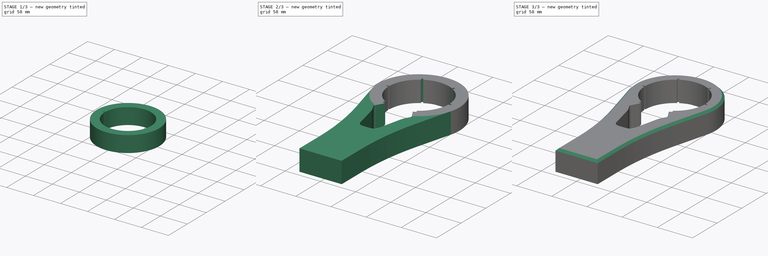
[diagram: build sequence overview — one tinted view per stage of 3, left to right]
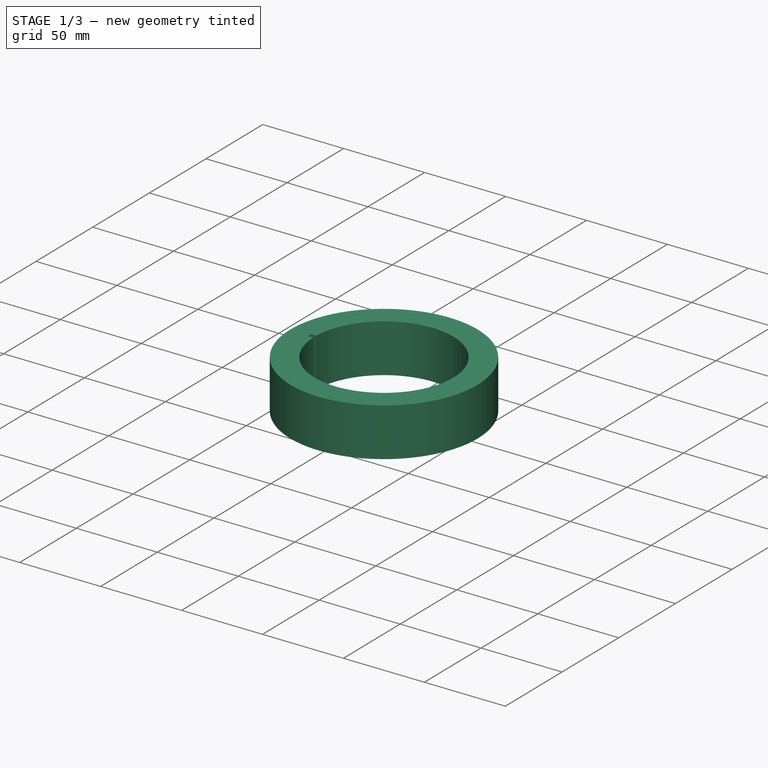
[diagram: stage 1 of 3 — iso view after this stage's code; geometry added in this stage tinted green]
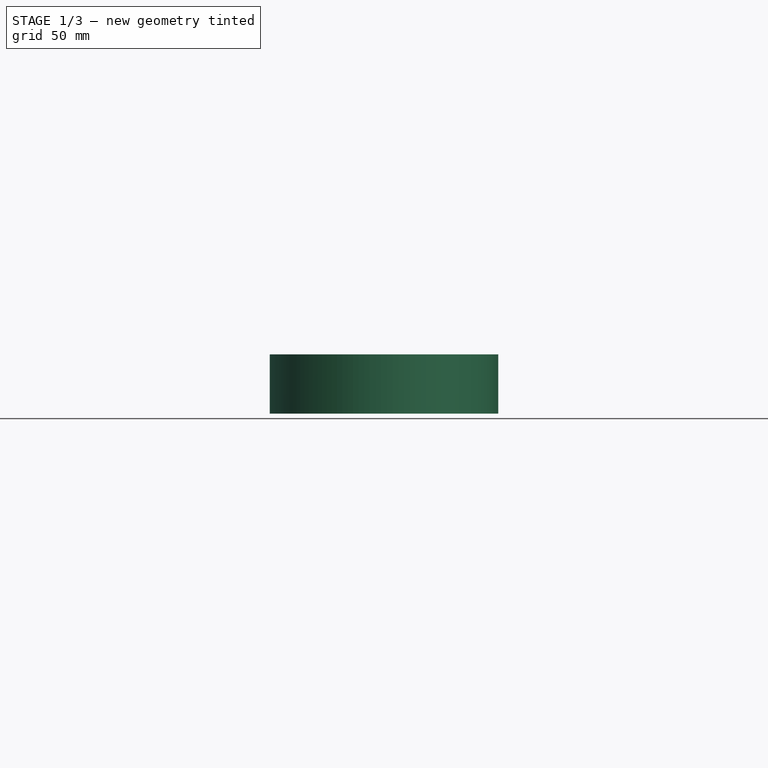
[diagram: stage 1 of 3 — front view after this stage's code; geometry added in this stage tinted green]
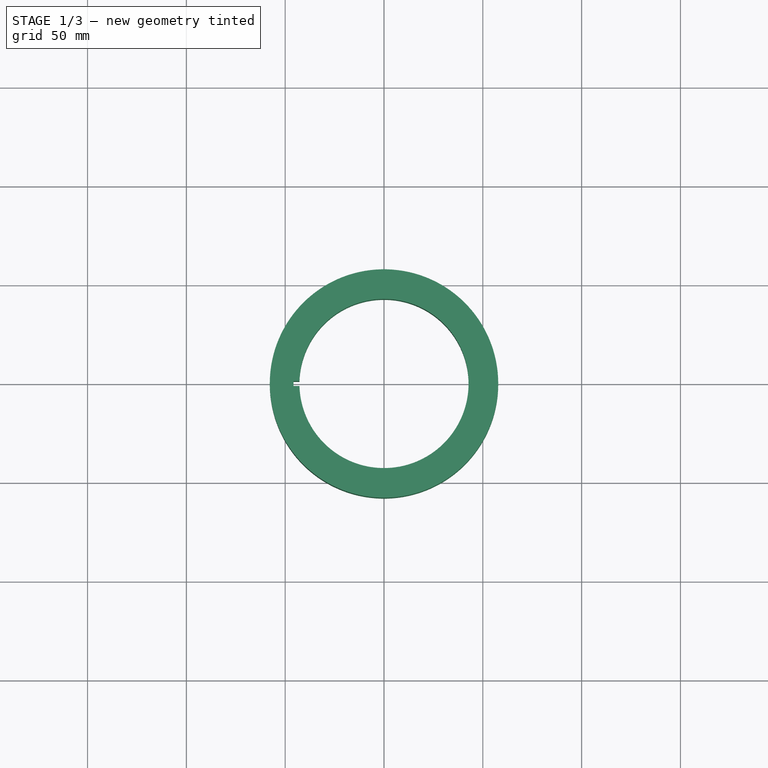
[diagram: stage 1 of 3 — top view after this stage's code; geometry added in this stage tinted green]
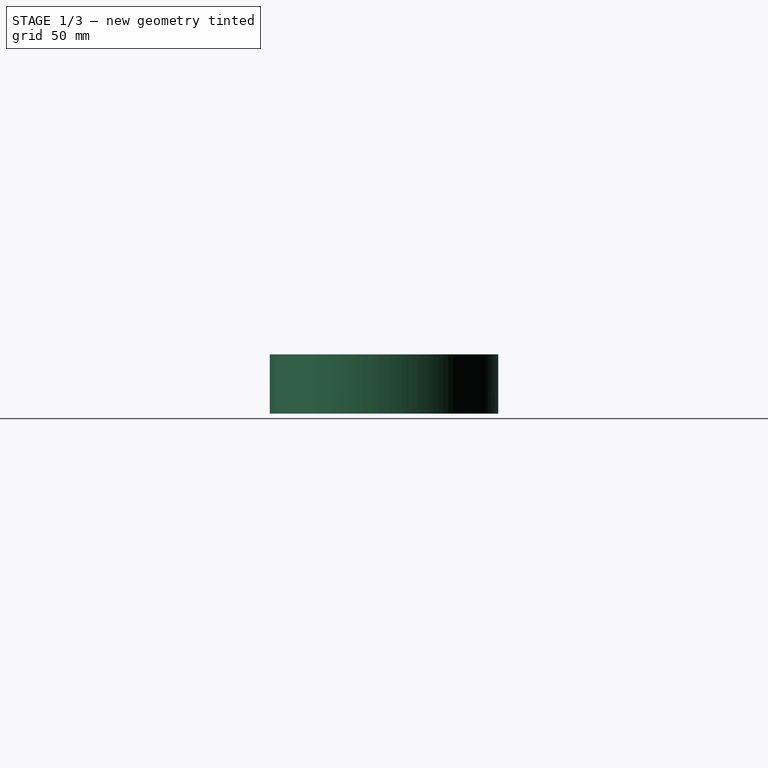
[diagram: stage 1 of 3 — right view after this stage's code; geometry added in this stage tinted green]
FCSTD DOCUMENT  (FreeCAD 0.21R33771 (Git))
Label: Ключ под фильтр
License: All rights reserved
LicenseURL: https://en.wikipedia.org/wiki/All_rights_reserved
objects: Sketcher::SketchObject×4, PartDesign::Pad×2, PartDesign::Pocket×2, PartDesign::PolarPattern×1, PartDesign::Chamfer×1, PartDesign::Fillet×1, PartDesign::Body×1
note: 18 computed .brp shape members not serialized (recipe doc carries the construction recipe); baked Part::Feature solids carry a one-line shape summary decoded from their .brp

FEATURE [Sketcher::SketchObject] Sketch001
  FullyConstrained = true
  MapMode = 5
  Support = -> [XY_Plane]
  sketch-geometry (4):
    g0: Circle CenterX=0 CenterY=0 CenterZ=0 NormalX=0 NormalY=0 NormalZ=1 AngleXU=0 Radius=42.8
    g1: Circle CenterX=0 CenterY=0 CenterZ=0 NormalX=0 NormalY=0 NormalZ=1 AngleXU=0 Radius=57.8
    g2: GeomPoint X=-42.8 Y=0 Z=0
    g3: GeomPoint X=-57.8 Y=0 Z=0
  constraints (8):
    c: Coincident(g0,g-1)
    c: Coincident(g1,g0)
    c: PointOnObject(g2,g0)
    c: PointOnObject(g3,g1)
    c: PointOnObject(g3,g-1)
    c: PointOnObject(g2,g-1)
    c: DistanceX(g3,g2) = 15
    c: Diameter(g0) = 85.6
FEATURE [PartDesign::Pad] Pad
  Direction = (0,0,1)
  Length = 30
  Length2 = 10
  Profile = -> Sketch001
  ReferenceAxis = -> Sketch001 [N_Axis]
  Type = 0
FEATURE [Sketcher::SketchObject] Sketch
  ExternalGeometry = -> [Pad]
  FullyConstrained = true
  MapMode = 5
  Support = -> [XY_Plane]
  sketch-geometry (4):
    g0: LineSegment StartX=-42.7817 StartY=1.25 StartZ=0 EndX=-45.7817 EndY=1.25 EndZ=0
    g1: LineSegment StartX=-45.7817 StartY=1.25 StartZ=0 EndX=-45.7817 EndY=-1.25 EndZ=0
    g2: LineSegment StartX=-45.7817 StartY=-1.25 StartZ=0 EndX=-42.7817 EndY=-1.25 EndZ=0
    g3: ArcOfCircle CenterX=0 CenterY=0 CenterZ=0 NormalX=0 NormalY=0 NormalZ=1 AngleXU=0 Radius=42.8 StartAngle=3.11238 EndAngle=3.1708
  constraints (12):
    c: Coincident(g0,g1)
    c: Vertical(g1)
    c: Coincident(g1,g2)
    c: Horizontal(g2)
    c: Horizontal(g0)
    c: Vertical(g0,g2)
    c: DistanceX(g0,g0) = 3
    c: DistanceY(g1,g1) = 2.5
    c: Coincident(g3,g-4)
    c: PointOnObject(g3,g-3)
    c: Coincident(g2,g3)
    c: Coincident(g0,g3)
FEATURE [PartDesign::Pocket] Pocket
  BaseFeature = -> Pad
  Direction = (0,0,-1)
  Length = 5
  Length2 = 5
  Profile = -> Sketch
  ReferenceAxis = -> Sketch [N_Axis]
  Reversed = true
  Type = 1
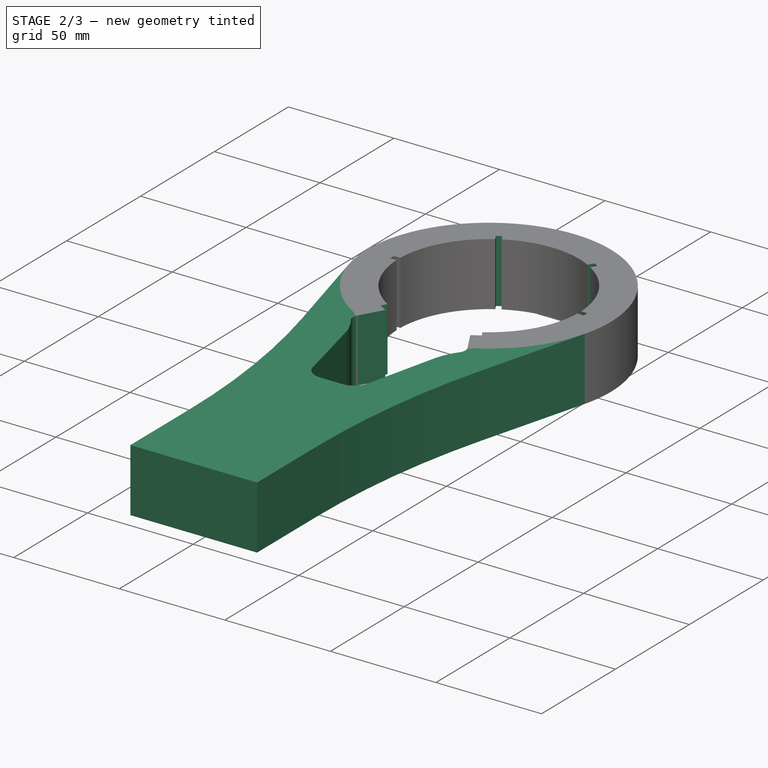
[diagram: stage 2 of 3 — iso view after this stage's code; geometry added in this stage tinted green]
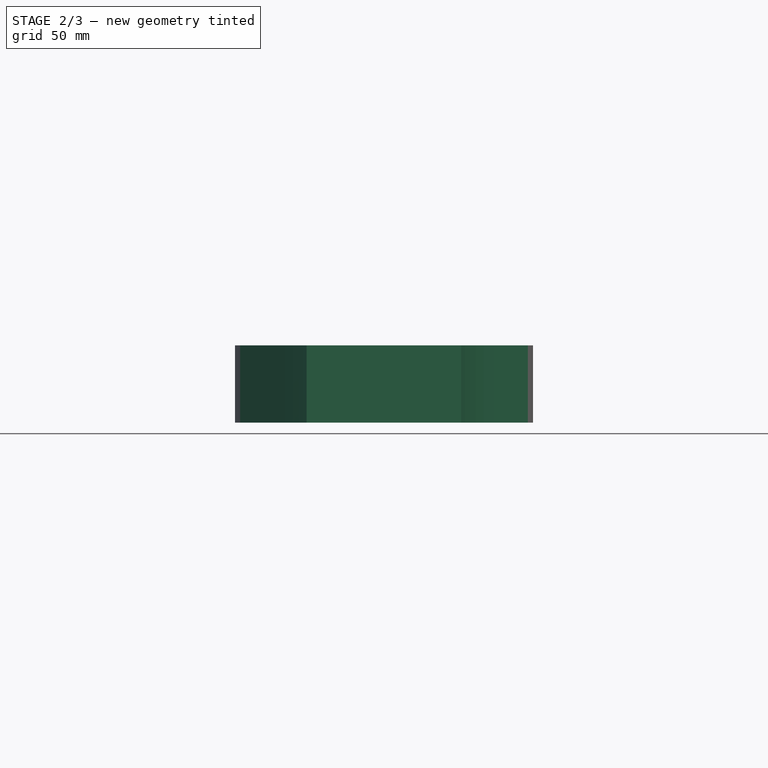
[diagram: stage 2 of 3 — front view after this stage's code; geometry added in this stage tinted green]
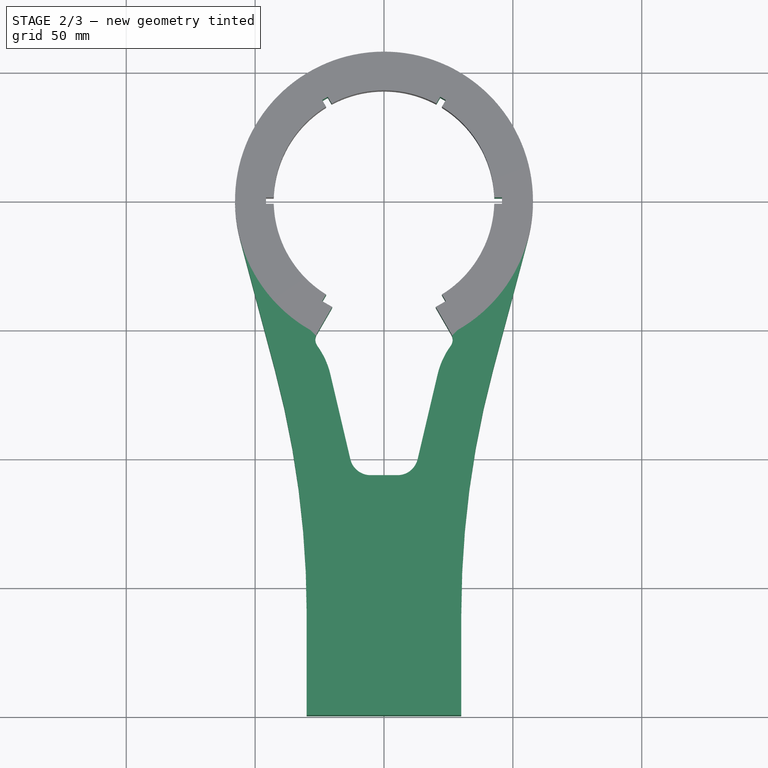
[diagram: stage 2 of 3 — top view after this stage's code; geometry added in this stage tinted green]
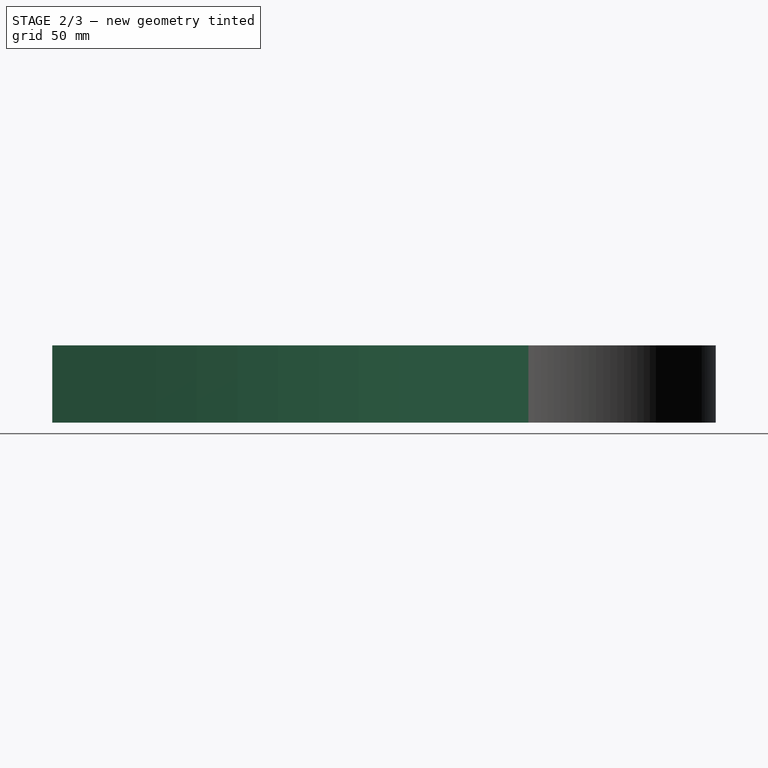
[diagram: stage 2 of 3 — right view after this stage's code; geometry added in this stage tinted green]
FEATURE [PartDesign::PolarPattern] PolarPattern
  Angle = 360
  Axis = -> Z_Axis
  BaseFeature = -> Pocket
  Occurrences = 6
  Originals = -> [Pocket]
FEATURE [Sketcher::SketchObject] Sketch002
  ExternalGeometry = -> [PolarPattern]
  FullyConstrained = true
  MapMode = 5
  Support = -> [XY_Plane]
  sketch-geometry (8):
    g0: LineSegment StartX=-21.8083 StartY=-40.2732 StartZ=0 EndX=-20.0763 EndY=-41.2732 EndZ=0
    g1: LineSegment StartX=-20.0763 StartY=-41.2732 StartZ=0 EndX=-26.0397 EndY=-51.6021 EndZ=0
    g2: LineSegment StartX=-21.8083 StartY=-40.2732 StartZ=0 EndX=-20.3083 EndY=-37.6751 EndZ=0
    g3: LineSegment StartX=21.8083 StartY=-40.2732 StartZ=0 EndX=20.0763 EndY=-41.2732 EndZ=0
    g4: LineSegment StartX=20.0763 StartY=-41.2732 StartZ=0 EndX=26.0397 EndY=-51.6021 EndZ=0
    g5: ArcOfCircle CenterX=0 CenterY=0 CenterZ=0 NormalX=0 NormalY=0 NormalZ=1 AngleXU=0 Radius=42.8 StartAngle=4.218 EndAngle=5.20678
    g6: ArcOfCircle CenterX=0 CenterY=0 CenterZ=0 NormalX=0 NormalY=0 NormalZ=1 AngleXU=0 Radius=57.8 StartAngle=4.24505 EndAngle=5.17973
    g7: LineSegment StartX=21.8083 StartY=-40.2732 StartZ=0 EndX=20.3083 EndY=-37.6751 EndZ=0
  constraints (21):
    c: Coincident(g-5,g0)
    c: Coincident(g0,g1)
    c: PointOnObject(g1,g-8)
    c: Coincident(g0,g2)
    c: Coincident(g2,g-7)
    c: Coincident(g-6,g3)
    c: Coincident(g3,g4)
    c: Coincident(g5,g-8)
    c: Coincident(g6,g5)
    c: Coincident(g6,g1)
    c: Coincident(g4,g6)
    c: Perpendicular(g1,g0)
    c: Coincident(g5,g2)
    c: Distance(g0) = 2
    c: Perpendicular(g4,g3)
    c: Coincident(g7,g3)
    c: Coincident(g7,g5)
    c: Parallel(g7,g-6)
    c: Equal(g3,g0)
    c: Perpendicular(g2,g0)
    c: Perpendicular(g7,g3)
FEATURE [Sketcher::SketchObject] Sketch003
  ExternalGeometry = -> [PolarPattern,Sketch002]
  FullyConstrained = false
  MapMode = 5
  Support = -> [XY_Plane]
  sketch-geometry (25):
    g0: LineSegment StartX=-55.841 StartY=-14.9207 StartZ=0 EndX=-42.3931 EndY=-65.2496 EndZ=0
    g1: LineSegment StartX=55.841 StartY=-14.9207 StartZ=0 EndX=42.3931 EndY=-65.2496 EndZ=0
    g2: GeomPoint X=-46.0397 Y=-51.6021 Z=0
    g3: LineSegment StartX=-30 StartY=-159.639 StartZ=0 EndX=-30 EndY=-199.639 EndZ=0
    g4: LineSegment StartX=30 StartY=-159.639 StartZ=0 EndX=30 EndY=-199.639 EndZ=0
    g5: LineSegment StartX=-30 StartY=-199.639 StartZ=0 EndX=30 EndY=-199.639 EndZ=0
    g6: ArcOfCircle CenterX=-395.648 CenterY=-159.639 CenterZ=0 NormalX=0 NormalY=0 NormalZ=1 AngleXU=0 Radius=365.648 StartAngle=0 EndAngle=0.2611
    g7: GeomPoint X=-30 Y=-111.631 Z=0
    g8: ArcOfCircle CenterX=395.648 CenterY=-159.639 CenterZ=0 NormalX=0 NormalY=0 NormalZ=1 AngleXU=0 Radius=365.648 StartAngle=2.88049 EndAngle=3.14159
    g9: GeomPoint X=30 Y=-111.631 Z=0
    g10: ArcOfCircle CenterX=-3.2e-15 CenterY=3.3e-15 CenterZ=0 NormalX=0 NormalY=0 NormalZ=1 AngleXU=0 Radius=57.8 StartAngle=3.40269 EndAngle=4.24505
    g11: LineSegment StartX=-20.8018 StartY=-67.4411 StartZ=0 EndX=-13.0567 EndY=-100.344 EndZ=0
    g12: LineSegment StartX=-5.20039 StartY=-106.566 StartZ=0 EndX=5.20039 EndY=-106.566 EndZ=0
    g13: LineSegment StartX=13.0567 StartY=-100.344 StartZ=0 EndX=20.8018 EndY=-67.4411 EndZ=0
    g14: ArcOfCircle CenterX=-5.20039 CenterY=-98.4952 CenterZ=0 NormalX=0 NormalY=0 NormalZ=1 AngleXU=0 Radius=8.07103 StartAngle=3.37277 EndAngle=4.71239
    g15: GeomPoint X=-11.5922 Y=-106.566 Z=0
    g16: ArcOfCircle CenterX=5.20039 CenterY=-98.4952 CenterZ=0 NormalX=0 NormalY=0 NormalZ=1 AngleXU=0 Radius=8.07103 StartAngle=4.71239 EndAngle=6.052
    g17: GeomPoint X=11.5922 Y=-106.566 Z=0
    g18: ArcOfCircle CenterX=-50.8368 CenterY=-74.511 CenterZ=0 NormalX=0 NormalY=0 NormalZ=1 AngleXU=0 Radius=30.8559 StartAngle=0.231181 EndAngle=0.623932
    g19: ArcOfCircle CenterX=-3.2e-15 CenterY=3.3e-15 CenterZ=0 NormalX=0 NormalY=0 NormalZ=1 AngleXU=0 Radius=57.8 StartAngle=5.17973 EndAngle=6.02209
    g20: ArcOfCircle CenterX=50.8368 CenterY=-74.511 CenterZ=0 NormalX=0 NormalY=0 NormalZ=1 AngleXU=0 Radius=30.8559 StartAngle=2.51766 EndAngle=2.91041
    g21: LineSegment StartX=26.0397 StartY=-51.6021 StartZ=0 EndX=20.0763 EndY=-41.2732 EndZ=0
    g22: ArcOfCircle CenterX=22.1402 CenterY=-53.8534 CenterZ=0 NormalX=0 NormalY=0 NormalZ=1 AngleXU=0 Radius=4.50271 StartAngle=5.65925 EndAngle=6.80678
    g23: LineSegment StartX=-26.0397 StartY=-51.6021 StartZ=0 EndX=-20.0763 EndY=-41.2732 EndZ=0
    g24: ArcOfCircle CenterX=-22.1402 CenterY=-53.8534 CenterZ=0 NormalX=0 NormalY=0 NormalZ=1 AngleXU=0 Radius=4.50271 StartAngle=2.61799 EndAngle=3.76552
  constraints (52):
    c: Horizontal(g7,g9)
    c: DistanceX(g7,g9) = 60
    c: Vertical(g4)
    c: Vertical(g3)
    c: Coincident(g5,g3)
    c: Coincident(g5,g4)
    c: Horizontal(g5)
    c: PointOnObject(g7,g3)
    c: PointOnObject(g7,g0)
    c: Tangent(g3,g6) = 1.5708
    c: Tangent(g0,g6) = 1.5708
    c: PointOnObject(g9,g4)
    c: PointOnObject(g9,g1)
    c: Tangent(g4,g8) = -1.5708
    c: Tangent(g1,g8) = -1.5708
    c: Equal(g8,g6)
    c: DistanceY(g3,g3) = 40
    c: PointOnObject(g2,g0)
    c: DistanceX(g2,g-4) = 20
    c: Equal(g10,g-3)
    c: PointOnObject(g0,g-3)
    c: Equal(g1,g0)
    c: Horizontal(g0,g1)
    c: Horizontal(g2,g-4)
    c: Tangent(g0,g10) = -1.5708
    c: Symmetric(g17,g15,g-2)
    c: PointOnObject(g15,g12)
    c: PointOnObject(g15,g11)
    c: Tangent(g12,g14) = -1.5708
    c: Tangent(g11,g14) = -1.5708
    c: PointOnObject(g17,g12)
    c: PointOnObject(g17,g13)
    c: Tangent(g12,g16) = -1.5708
    c: Tangent(g13,g16) = -1.5708
    c: Tangent(g11,g18) = 1.5708
    c: Coincident(g19,g10)
    c: Coincident(g19,g1)
    c: Tangent(g13,g20) = 1.5708
    c: Equal(g20,g18)
    c: Equal(g16,g14)
    c: Coincident(g19,g-5)
    c: Coincident(g10,g-4)
    c: Coincident(g21,g-5)
    c: Tangent(g20,g22) = 1.5708
    c: Tangent(g21,g22) = -1.5708
    c: Coincident(g22,g19)
    c: Coincident(g23,g-4)
    c: Tangent(g18,g24) = 1.5708
    c: Tangent(g23,g24) = 1.5708
    c: Equal(g24,g22)
    c: Coincident(g24,g10)
    c: Horizontal(g20,g18)
FEATURE [PartDesign::Pad] Pad001
  BaseFeature = -> PolarPattern
  Direction = (0,0,1)
  Length = 30
  Length2 = 10
  Profile = -> Sketch003
  ReferenceAxis = -> Sketch003 [N_Axis]
  Type = 0
FEATURE [PartDesign::Pocket] Pocket001
  BaseFeature = -> Pad001
  Direction = (0,0,-1)
  Length = 5
  Length2 = 5
  Profile = -> Sketch002
  ReferenceAxis = -> Sketch002 [N_Axis]
  Reversed = true
  Type = 1
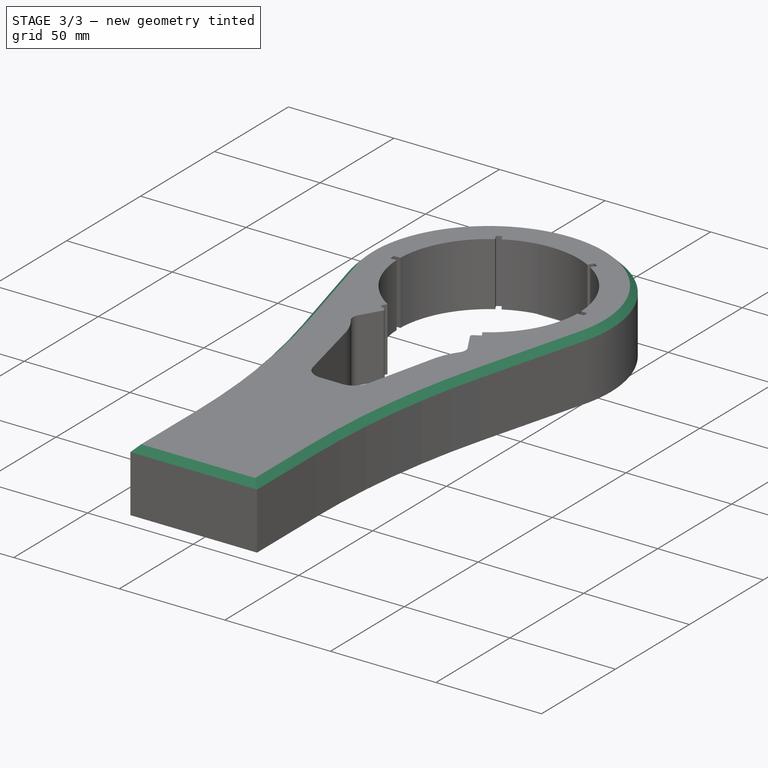
[diagram: stage 3 of 3 — iso view after this stage's code; geometry added in this stage tinted green]
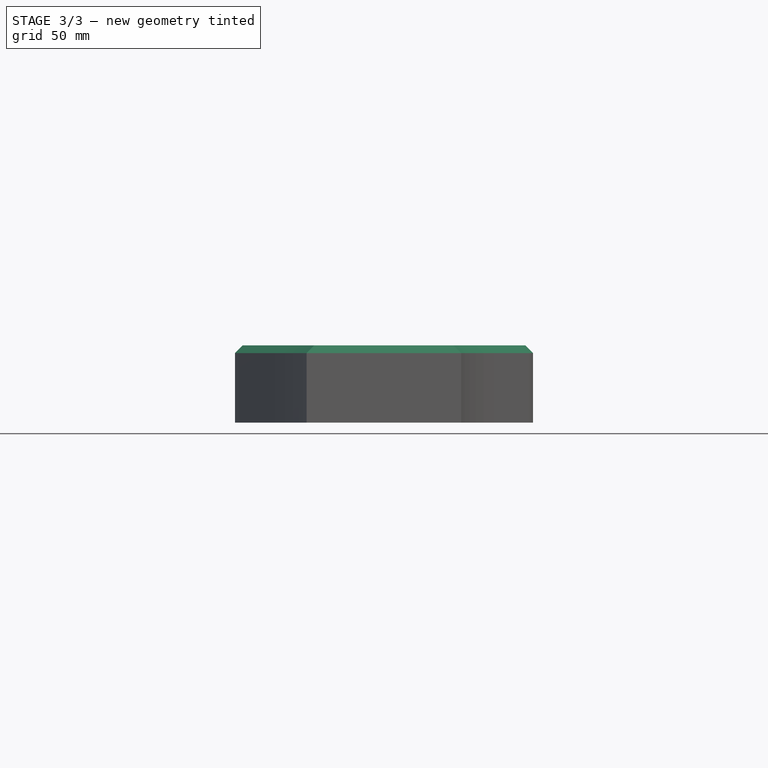
[diagram: stage 3 of 3 — front view after this stage's code; geometry added in this stage tinted green]
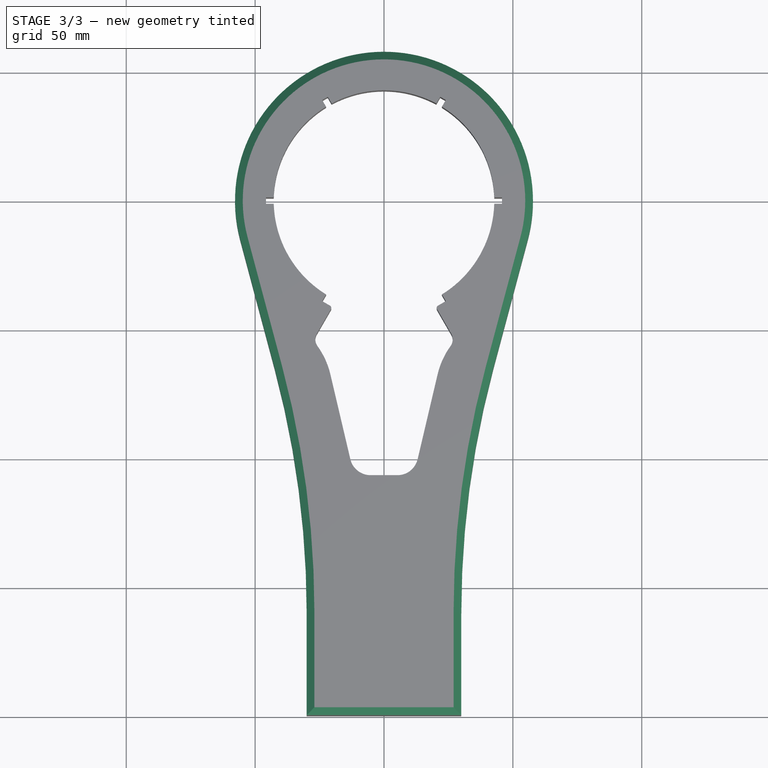
[diagram: stage 3 of 3 — top view after this stage's code; geometry added in this stage tinted green]
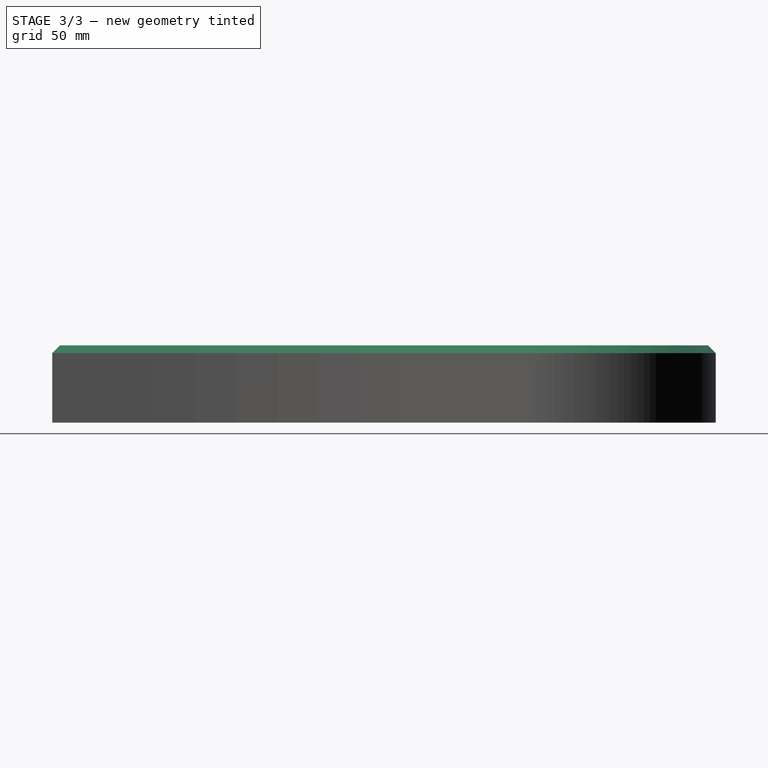
[diagram: stage 3 of 3 — right view after this stage's code; geometry added in this stage tinted green]
FEATURE [PartDesign::Chamfer] Chamfer
  Angle = 45
  Base = -> Pocket001 [Edge109,Edge108,Edge107,Edge110,Edge111]
  BaseFeature = -> Pocket001
  ChamferType = 0
  FlipDirection = false
  Size = 3
  Size2 = 1
  SupportTransform = false
  UseAllEdges = false
FEATURE [PartDesign::Fillet] Fillet
  Base = -> Chamfer [Edge94,Edge117]
  BaseFeature = -> Chamfer
  Radius = 1
  SupportTransform = false
  UseAllEdges = false
FEATURE [PartDesign::Body] Body  label="Тело"
  Group = -> [Sketch,Sketch001,Pad,Pocket,PolarPattern,Sketch003,Pad001,Sketch002,Pocket001,Chamfer,Fillet]
  Origin = -> Origin
  Tip = -> Fillet
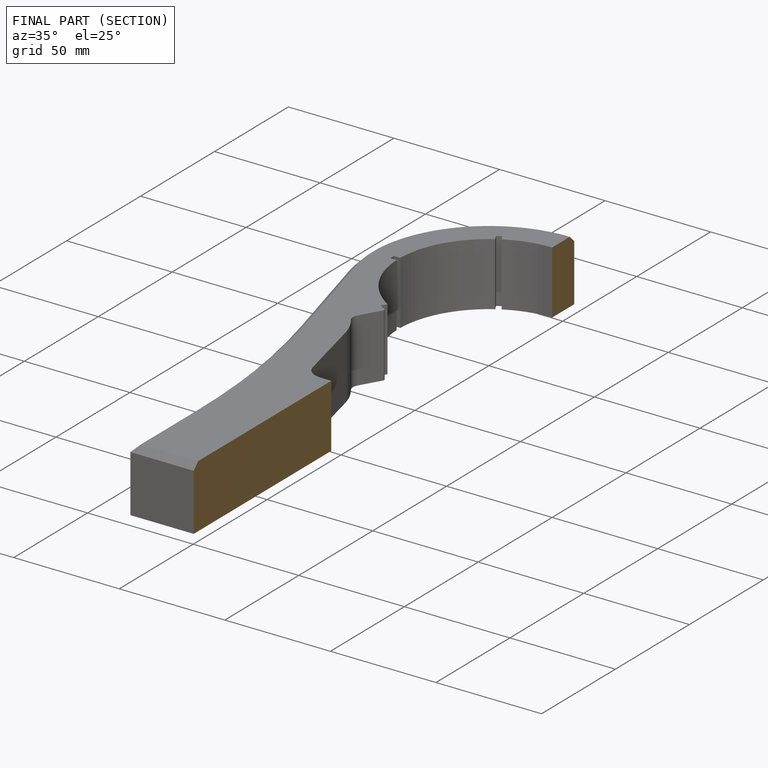
[diagram: finished part — half-section view (interior)]
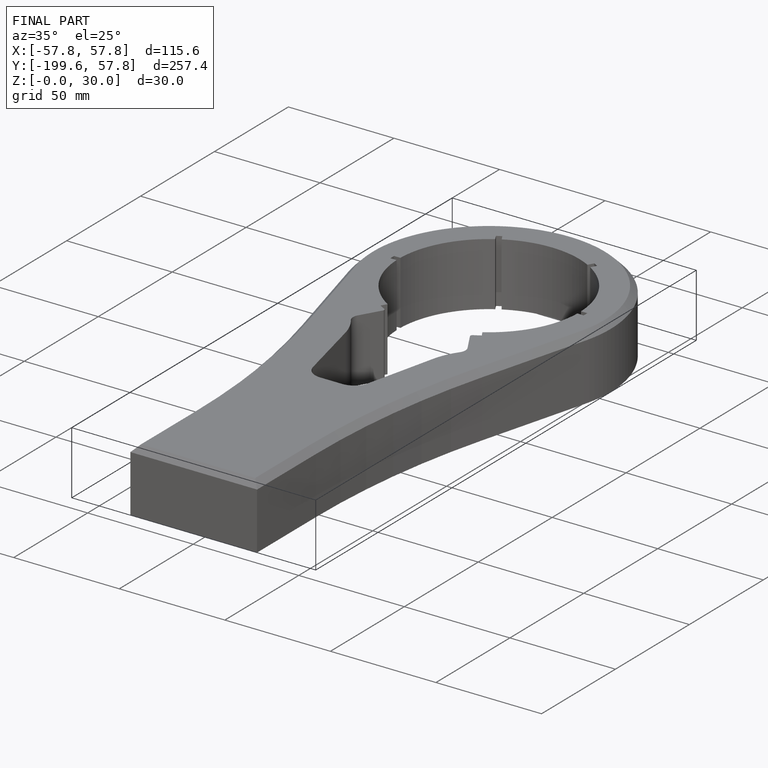
[diagram: finished part — iso view with bounding-box wireframe]
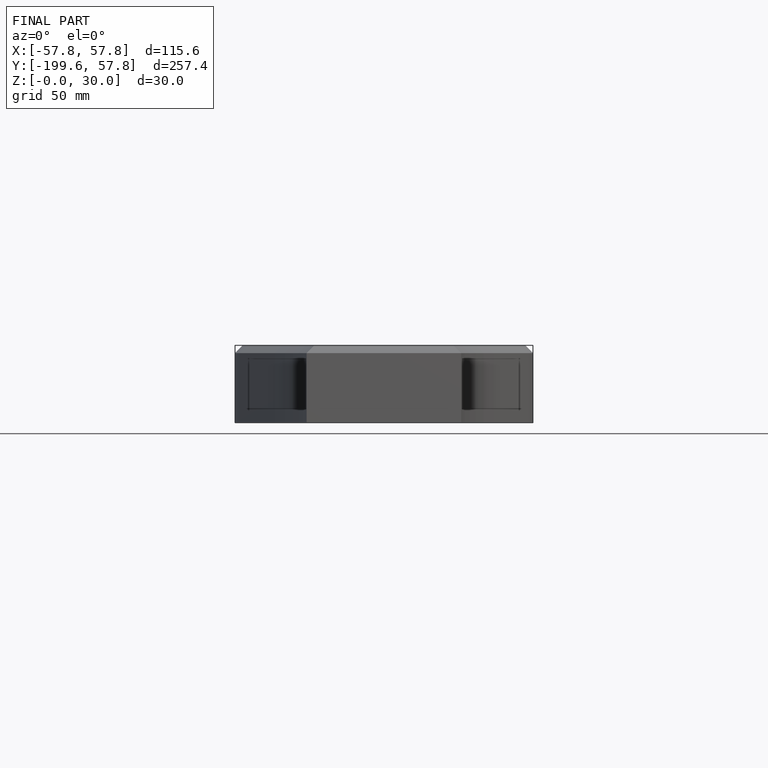
[diagram: finished part — front view with bounding-box wireframe]
